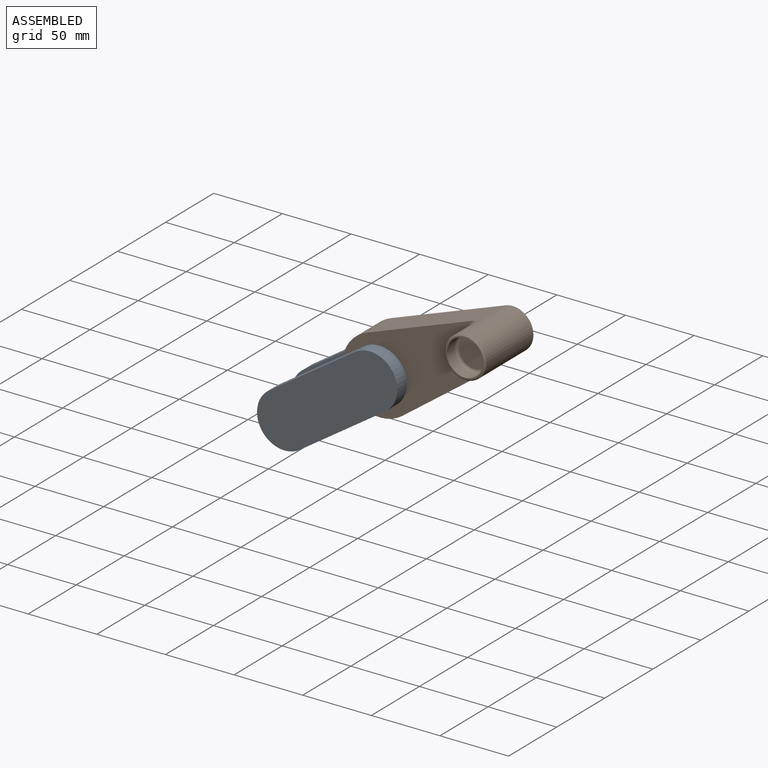
[diagram: assembled view]
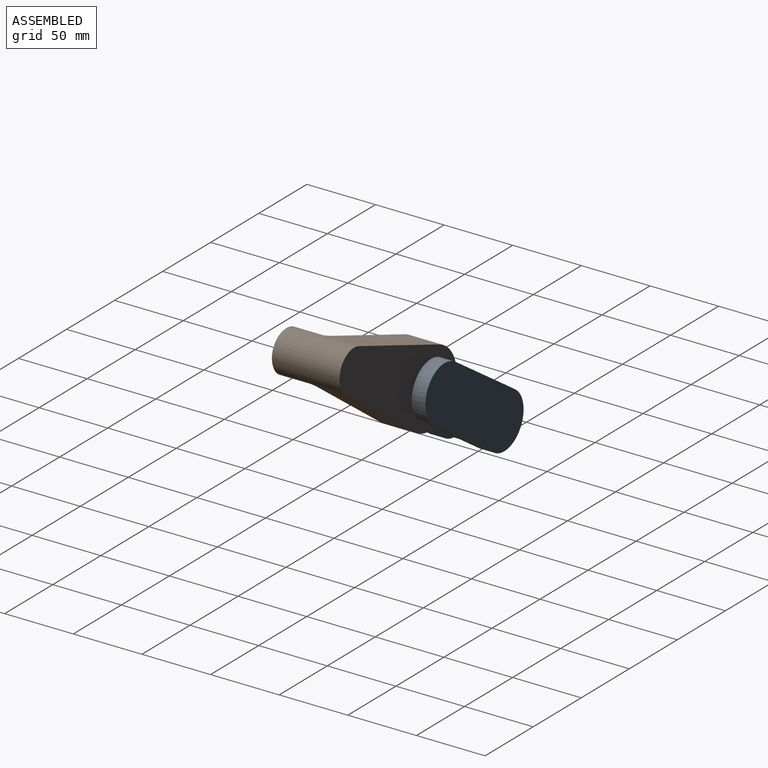
[diagram: assembled view, second angle]
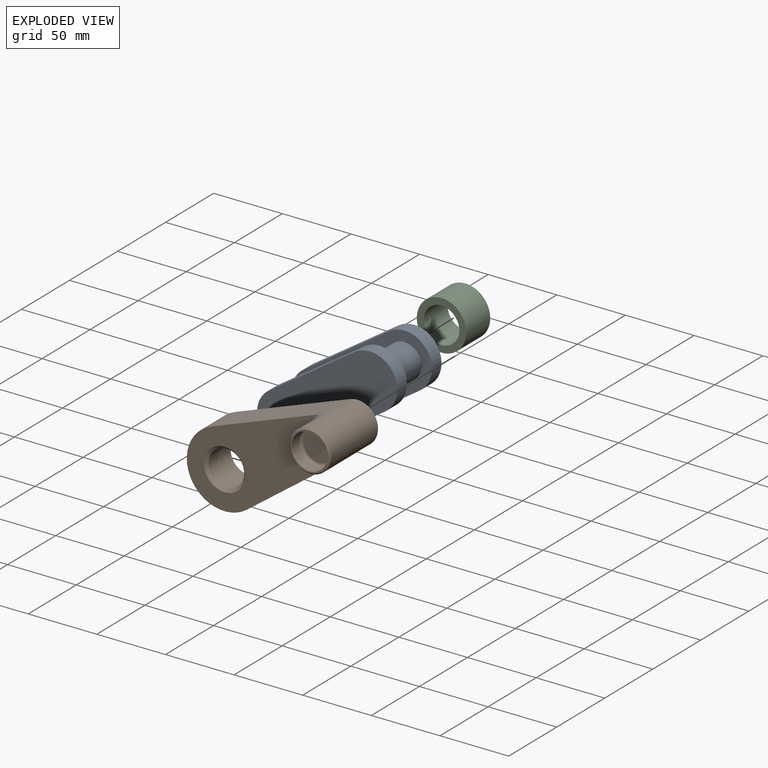
[diagram: exploded view]
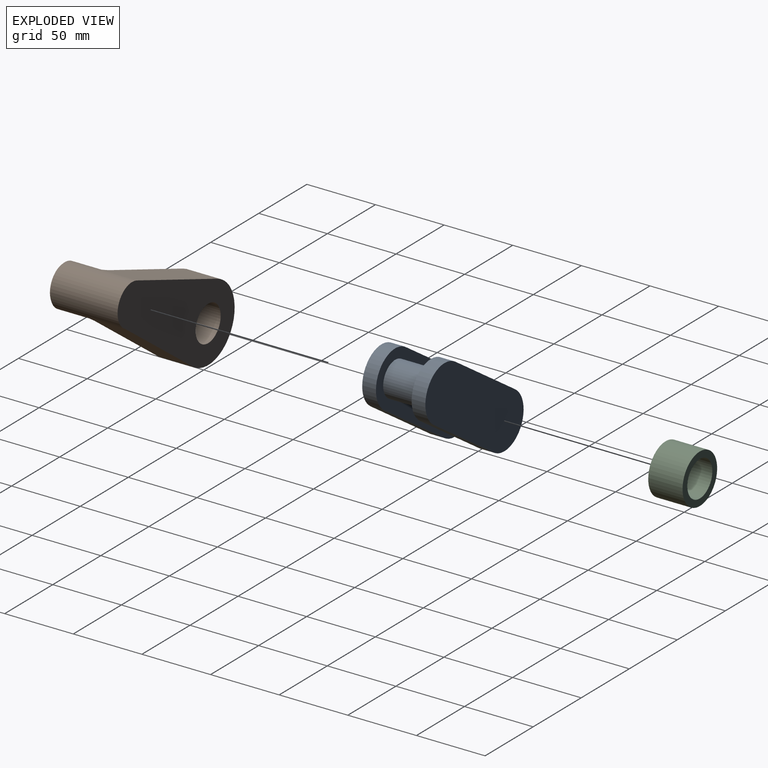
[diagram: exploded view, second angle]
ASSEMBLY  parts=3 mates=2
PART A: 14 faces, bbox 115x46x40 mm
  f0: plane 74.93x10mm, normal (0,0,1), area 749.3mm2, adj f1,f3,f4,f5
  f1: cylinder r=20mm len=40mm, axis (0,1,0), area 630.1mm2, adj f0,f2,f4,f5
  f2: plane 75x10mm, normal (0,0,-1), area 750mm2, adj f1,f3,f4,f5
  f3: cylinder r=20mm len=40mm, axis (0,1,0), area 627.2mm2, adj f0,f2,f4,f5
  f4: plane 115x40mm, normal (0,-1,0), area 4256.6mm2, adj f0,f1,f2,f3
  f5: plane 115x40mm, normal (0,1,0), area 3274.8mm2, adj f0,f1,f2,f3,f6,f7
  f6: cylinder r=12.5mm len=26mm, axis (0,-1,0), area 2042mm2, adj f5,f8
  f7: cylinder r=12.5mm len=26mm, axis (0,-1,0), area 2042mm2, adj f5,f8
  f8: plane 115.01x40.01mm, normal (0,-1,0), area 3275.3mm2, adj f6,f7,f9,f10,f11,f12
  f9: cylinder r=20.01mm len=40.01mm, axis (0,-1,0), area 638.5mm2, adj f8,f10,f12,f13
  f10: plane 73.22x10mm, normal (0,0,-1), area 732.2mm2, adj f8,f9,f11,f13
  f11: cylinder r=20.01mm len=40.01mm, axis (0,-1,0), area 638.5mm2, adj f8,f10,f12,f13
  f12: plane 74.79x10mm, normal (0,0,1), area 747.9mm2, adj f8,f9,f11,f13
  f13: plane 115.01x40.01mm, normal (0,1,0), area 4257.1mm2, adj f9,f10,f11,f12
PART B: 14 faces, bbox 132.5x50x55 mm
  f0: cylinder r=15mm len=49mm, axis (0,1,0), area 3300.7mm2, adj f1,f3,f5,f12,f13
  f1: plane 87.92x27mm, normal (0.14,0,0.99), area 2225.6mm2, adj f0,f2,f4,f5,f13
  f2: cylinder r=27.5mm len=55mm, axis (0,1,0), area 2361.8mm2, adj f1,f3,f4,f5
  f3: plane 85.7x27mm, normal (0.14,0,-0.99), area 2167.4mm2, adj f0,f2,f4,f5,f13
  f4: plane 111.66x55mm, normal (0,-1,0), area 3893.7mm2, adj f1,f2,f3,f10,f13
  f5: plane 132.5x55mm, normal (0,1,0), area 4863mm2, adj f0,f1,f2,f3,f7
  f6: plane 28x28mm, normal (0,-1,0), area 84.8mm2, adj f8,f12
  f7: cylinder r=13mm len=26mm, axis (0,-1,0), area 1878.7mm2, adj f5,f10
  f8: cylinder r=13mm len=26mm, axis (0,-1,0), area 653.5mm2, adj f6,f11
  f9: plane 22x22mm, normal (0,-1,0), area 380.1mm2, adj f11
  f10: cone r=13mm half-angle=45deg, axis (0,-1,0), area 248.8mm2, adj f4,f7
  f11: torus R=11mm, axis (0,-1,0), area 242.3mm2, adj f8,f9
  f12: cone r=14mm half-angle=45deg, axis (0,1,0), area 128.8mm2, adj f0,f6
  f13: torus R=17mm, axis (0,-1,0), area 139.4mm2, adj f0,f1,f3,f4
PART C: 4 faces, bbox 36x25x36 mm
  f0: cylinder r=13mm len=26mm, axis (0,1,0), area 2042mm2, adj f2,f3
  f1: cylinder r=18mm len=36mm, axis (0,1,0), area 2827.4mm2, adj f2,f3
  f2: plane 36x36mm, normal (0,-1,0), area 486.9mm2, adj f0,f1
  f3: plane 36x36mm, normal (0,1,0), area 486.9mm2, adj f0,f1
PLACE A rot(axis=(-0.96,0,-0.29),180deg) t=(-21.88,-43.09,-86.23)mm
PLACE B rot(axis=(0,-1,0),28.2deg) t=(9.22,-43.59,-65.29)mm
PLACE C rot(axis=(0,1,0),32.8deg) t=(-52.99,-43.59,-107.18)mm fixed
MATE revolute A.f6 <-> B.f2  axis (0,1,0) through (9.22,-56.09,-65.29)mm
MATE revolute C.f1 <-> A.f7  axis (0,1,0) through (-52.99,-56.09,-107.18)mm
